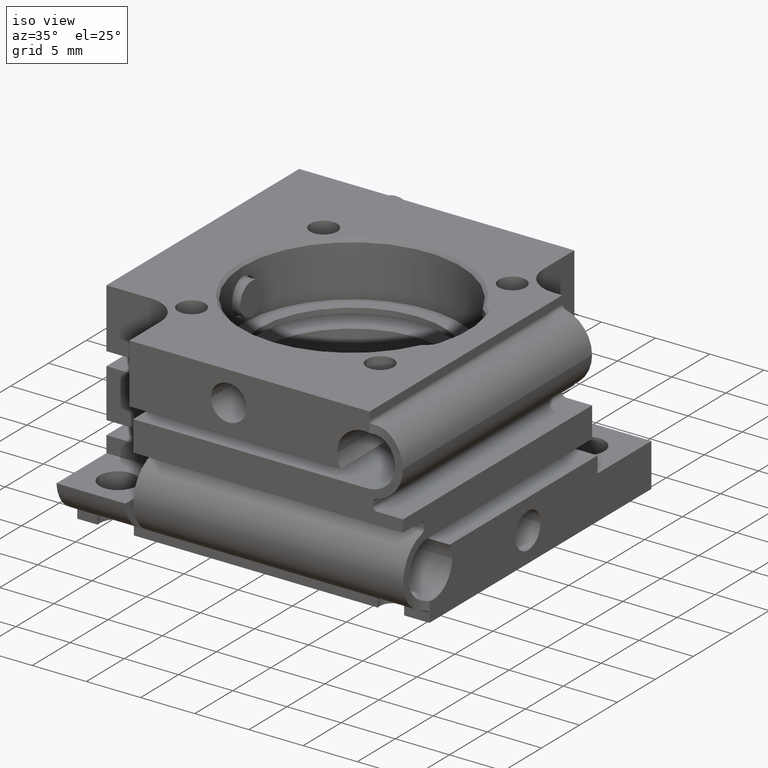
[diagram: clean part render]
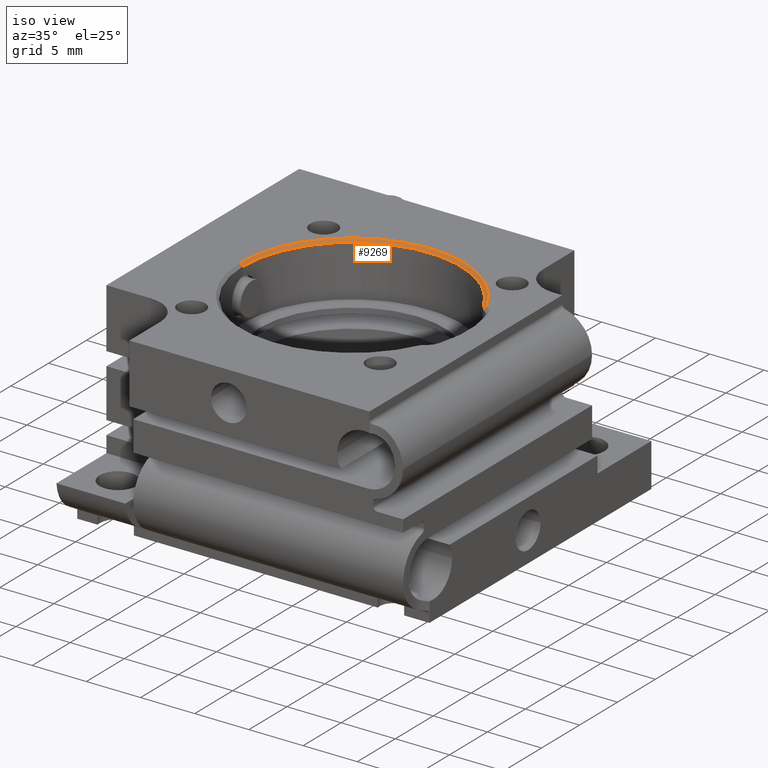
[diagram: same view with one face highlighted and labeled with its STEP entity id]
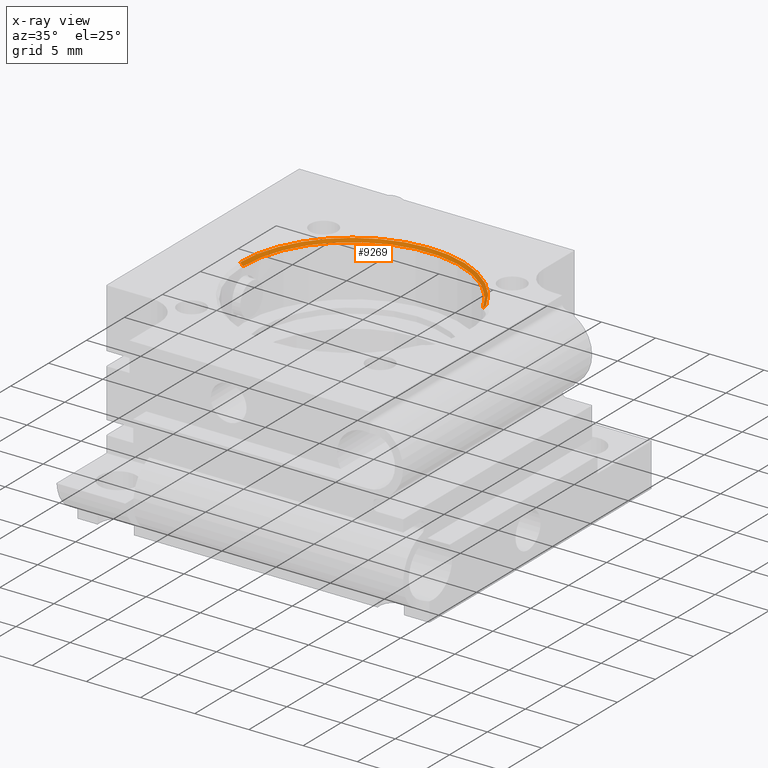
[diagram: x-ray of the same camera — body ghosted, the highlighted face saturated]
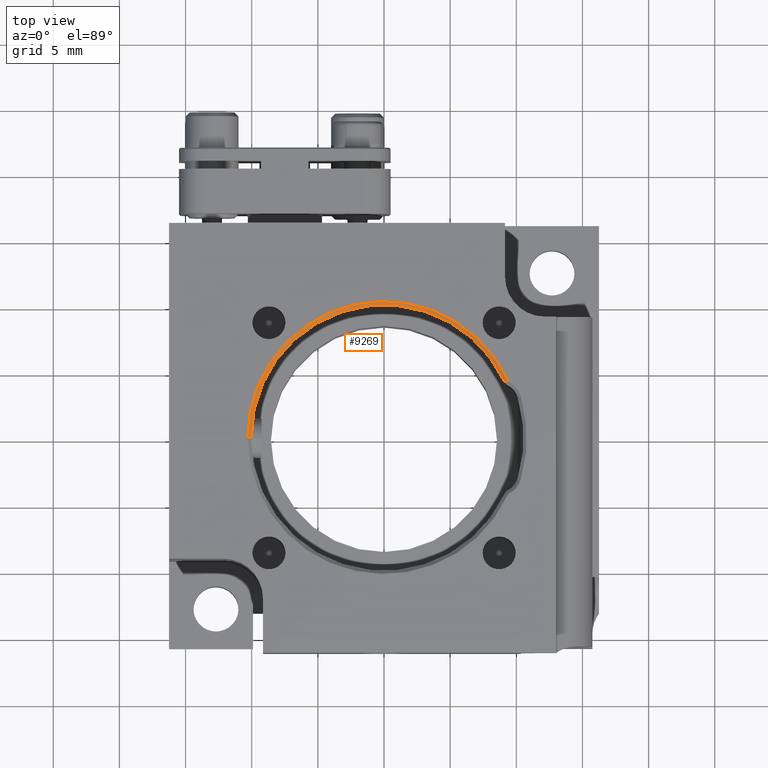
[diagram: same view with one face highlighted and labeled with its STEP entity id]
A machine part, iso view. The second image highlights one B-rep face of the part: STEP entity #9269.
The next image is the same camera in x-ray: the body ghosted, the highlighted face saturated — about 0% of this face is hidden behind the body in this view.
A second angle (top view) of the same face is appended — the face is thin or edge-on in the first view.
In plain terms, the highlighted conical surface has half-angle 45 deg.
Its self-contained STEP definition (entity closure, byte-faithful):
#1 = VECTOR ( 'NONE', #9281, 1000.000000000000000 ) ;
#590 = VERTEX_POINT ( 'NONE', #5521 ) ;
#614 = EDGE_CURVE ( 'NONE', #7175, #3795, #10445, .T. ) ;
#2368 = CARTESIAN_POINT ( 'NONE',  ( 0.000000000000000000, 9.000000000000000000, 10.30000000000002913 ) ) ;
#2427 = LINE ( 'NONE', #10299, #1 ) ;
#3253 = AXIS2_PLACEMENT_3D ( 'NONE', #12490, #9322, #12681 ) ;
#3499 = DIRECTION ( 'NONE',  ( -0.000000000000000000, -1.000000000000000000, -0.000000000000000000 ) ) ;
#3653 = CONICAL_SURFACE ( 'NONE', #5582, 10.05000000000000071, 0.7853981633974517207 ) ;
#3795 = VERTEX_POINT ( 'NONE', #12697 ) ;
#4342 = DIRECTION ( 'NONE',  ( 0.000000000000000000, 1.000000000000000000, 0.000000000000000000 ) ) ;
#4715 = ORIENTED_EDGE ( 'NONE', *, *, #9391, .T. ) ;
#4954 = EDGE_CURVE ( 'NONE', #590, #7175, #9054, .T. ) ;
#5274 = CARTESIAN_POINT ( 'NONE',  ( 0.000000000000000000, 8.749999999999971578, 0.000000000000000000 ) ) ;
#5521 = CARTESIAN_POINT ( 'NONE',  ( 0.000000000000000000, 8.749999999999971578, 10.05000000000000071 ) ) ;
#5582 = AXIS2_PLACEMENT_3D ( 'NONE', #5274, #4342, #7544 ) ;
#5892 = ORIENTED_EDGE ( 'NONE', *, *, #9964, .F. ) ;
#6358 = VERTEX_POINT ( 'NONE', #11188 ) ;
#7175 = VERTEX_POINT ( 'NONE', #2368 ) ;
#7478 = FACE_OUTER_BOUND ( 'NONE', #8198, .T. ) ;
#7544 = DIRECTION ( 'NONE',  ( 0.000000000000000000, 0.000000000000000000, 1.000000000000000000 ) ) ;
#8179 = ORIENTED_EDGE ( 'NONE', *, *, #4954, .F. ) ;
#8198 = EDGE_LOOP ( 'NONE', ( #8179, #5892, #4715, #13157 ) ) ;
#9054 = LINE ( 'NONE', #11152, #11557 ) ;
#9269 = ADVANCED_FACE ( 'NONE', ( #7478 ), #3653, .F. ) ;
#9281 = DIRECTION ( 'NONE',  ( -0.2966762502784259792, 0.7071067811865454633, -0.6418591765494481294 ) ) ;
#9322 = DIRECTION ( 'NONE',  ( 0.000000000000000000, 1.000000000000000000, 0.000000000000000000 ) ) ;
#9391 = EDGE_CURVE ( 'NONE', #6358, #3795, #2427, .T. ) ;
#9950 = DIRECTION ( 'NONE',  ( 0.000000000000000000, 0.7071067811865451302, 0.7071067811865500152 ) ) ;
#9964 = EDGE_CURVE ( 'NONE', #6358, #590, #11404, .T. ) ;
#10023 = AXIS2_PLACEMENT_3D ( 'NONE', #12705, #3499, #12582 ) ;
#10299 = CARTESIAN_POINT ( 'NONE',  ( -4.216613946616337927, 8.749999999999973355, -9.122645823729021330 ) ) ;
#10445 = CIRCLE ( 'NONE', #10023, 10.30000000000002913 ) ;
#11152 = CARTESIAN_POINT ( 'NONE',  ( 0.000000000000000000, 8.749999999999971578, 10.05000000000000071 ) ) ;
#11188 = CARTESIAN_POINT ( 'NONE',  ( -4.216613946616338815, 8.749999999999973355, -9.122645823729023107 ) ) ;
#11404 = CIRCLE ( 'NONE', #3253, 10.05000000000000071 ) ;
#11557 = VECTOR ( 'NONE', #9950, 1000.000000000000114 ) ;
#12490 = CARTESIAN_POINT ( 'NONE',  ( 0.000000000000000000, 8.749999999999971578, 0.000000000000000000 ) ) ;
#12582 = DIRECTION ( 'NONE',  ( 0.000000000000000000, 0.000000000000000000, 1.000000000000000000 ) ) ;
#12681 = DIRECTION ( 'NONE',  ( 0.000000000000000000, 0.000000000000000000, 1.000000000000000000 ) ) ;
#12697 = CARTESIAN_POINT ( 'NONE',  ( -4.321504840810785453, 9.000000000000000000, -9.349577311881509090 ) ) ;
#12705 = CARTESIAN_POINT ( 'NONE',  ( 0.000000000000000000, 9.000000000000000000, 0.000000000000000000 ) ) ;
#13157 = ORIENTED_EDGE ( 'NONE', *, *, #614, .F. ) ;